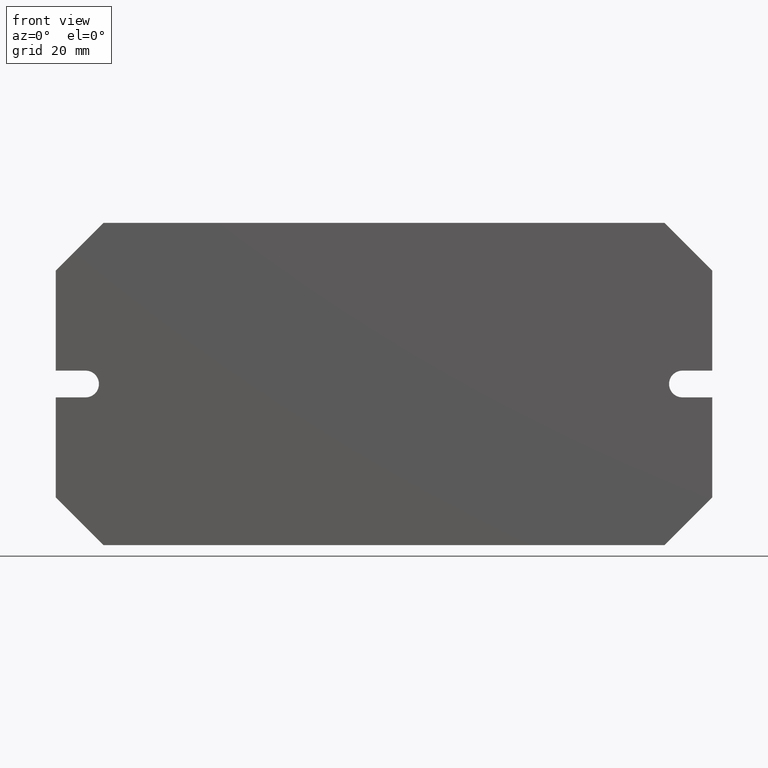
[diagram: clean part render]
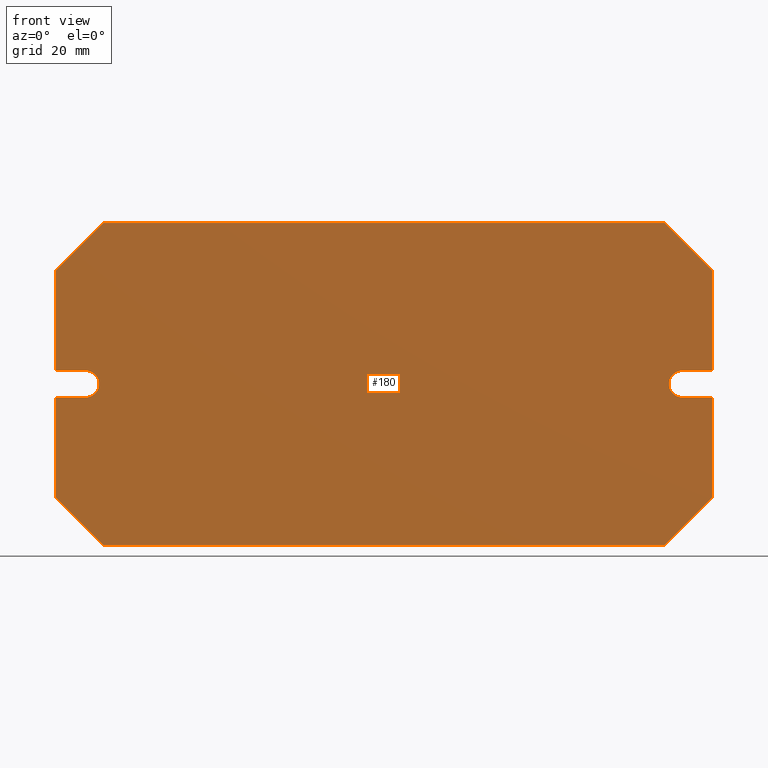
[diagram: same view with one face highlighted and labeled with its STEP entity id]
A machine part, front view. The second image highlights one B-rep face of the part: STEP entity #180.
In plain terms, the highlighted planar face has unit normal (0, 1, 0).
Its self-contained STEP definition (entity closure, byte-faithful):
#1 = ORIENTED_EDGE ( 'NONE', *, *, #195, .F. ) ;
#2 = ORIENTED_EDGE ( 'NONE', *, *, #152, .F. ) ;
#3 = ORIENTED_EDGE ( 'NONE', *, *, #67, .F. ) ;
#5 = ORIENTED_EDGE ( 'NONE', *, *, #85, .F. ) ;
#6 = ORIENTED_EDGE ( 'NONE', *, *, #96, .F. ) ;
#7 = ORIENTED_EDGE ( 'NONE', *, *, #23, .F. ) ;
#8 = ORIENTED_EDGE ( 'NONE', *, *, #30, .F. ) ;
#9 = ORIENTED_EDGE ( 'NONE', *, *, #47, .F. ) ;
#10 = ORIENTED_EDGE ( 'NONE', *, *, #50, .F. ) ;
#11 = EDGE_LOOP ( 'NONE', ( #10, #12, #1, #2, #165, #166, #167, #168, #169, #14, #5, #6, #7, #8, #9, #3 ) ) ;
#12 = ORIENTED_EDGE ( 'NONE', *, *, #181, .F. ) ;
#14 = ORIENTED_EDGE ( 'NONE', *, *, #93, .F. ) ;
#23 = EDGE_CURVE ( 'NONE', #29, #28, #334, .T. ) ;
#28 = VERTEX_POINT ( 'NONE', #325 ) ;
#29 = VERTEX_POINT ( 'NONE', #324 ) ;
#30 = EDGE_CURVE ( 'NONE', #39, #29, #323, .T. ) ;
#39 = VERTEX_POINT ( 'NONE', #368 ) ;
#47 = EDGE_CURVE ( 'NONE', #62, #39, #358, .T. ) ;
#50 = EDGE_CURVE ( 'NONE', #51, #52, #277, .T. ) ;
#51 = VERTEX_POINT ( 'NONE', #250 ) ;
#52 = VERTEX_POINT ( 'NONE', #276 ) ;
#62 = VERTEX_POINT ( 'NONE', #299 ) ;
#67 = EDGE_CURVE ( 'NONE', #52, #62, #289, .T. ) ;
#79 = EDGE_CURVE ( 'NONE', #112, #80, #502, .T. ) ;
#80 = VERTEX_POINT ( 'NONE', #494 ) ;
#85 = EDGE_CURVE ( 'NONE', #95, #86, #503, .T. ) ;
#86 = VERTEX_POINT ( 'NONE', #534 ) ;
#93 = EDGE_CURVE ( 'NONE', #86, #94, #516, .T. ) ;
#94 = VERTEX_POINT ( 'NONE', #510 ) ;
#95 = VERTEX_POINT ( 'NONE', #509 ) ;
#96 = EDGE_CURVE ( 'NONE', #28, #95, #535, .T. ) ;
#112 = VERTEX_POINT ( 'NONE', #546 ) ;
#119 = EDGE_CURVE ( 'NONE', #94, #112, #590, .T. ) ;
#122 = EDGE_CURVE ( 'NONE', #80, #143, #586, .T. ) ;
#143 = VERTEX_POINT ( 'NONE', #215 ) ;
#152 = EDGE_CURVE ( 'NONE', #219, #156, #239, .T. ) ;
#156 = VERTEX_POINT ( 'NONE', #237 ) ;
#165 = ORIENTED_EDGE ( 'NONE', *, *, #224, .F. ) ;
#166 = ORIENTED_EDGE ( 'NONE', *, *, #208, .F. ) ;
#167 = ORIENTED_EDGE ( 'NONE', *, *, #122, .F. ) ;
#168 = ORIENTED_EDGE ( 'NONE', *, *, #79, .F. ) ;
#169 = ORIENTED_EDGE ( 'NONE', *, *, #119, .F. ) ;
#180 = ADVANCED_FACE ( 'NONE', ( #405 ), #411, .F. ) ;
#181 = EDGE_CURVE ( 'NONE', #202, #51, #402, .T. ) ;
#195 = EDGE_CURVE ( 'NONE', #156, #202, #392, .T. ) ;
#202 = VERTEX_POINT ( 'NONE', #448 ) ;
#208 = EDGE_CURVE ( 'NONE', #143, #221, #426, .T. ) ;
#215 = CARTESIAN_POINT ( 'NONE',  ( -46.99999999999997900, 0.0000000000000000000, -26.99999999999997900 ) ) ;
#219 = VERTEX_POINT ( 'NONE', #422 ) ;
#221 = VERTEX_POINT ( 'NONE', #421 ) ;
#224 = EDGE_CURVE ( 'NONE', #221, #219, #470, .T. ) ;
#237 = CARTESIAN_POINT ( 'NONE',  ( -49.99999999999999300, 0.0000000000000000000, -2.249999999999975600 ) ) ;
#239 = LINE ( 'NONE', #244, #243 ) ;
#242 = DIRECTION ( 'NONE',  ( 1.000000000000000000, 0.0000000000000000000, 0.0000000000000000000 ) ) ;
#243 = VECTOR ( 'NONE', #242, 1000.000000000000000 ) ;
#244 = CARTESIAN_POINT ( 'NONE',  ( -55.00000000000000000, 0.0000000000000000000, -2.249999999999981300 ) ) ;
#250 = CARTESIAN_POINT ( 'NONE',  ( -55.00000000000000000, 0.0000000000000000000, 2.249999999999981300 ) ) ;
#262 = CARTESIAN_POINT ( 'NONE',  ( -55.00000000000000000, 0.0000000000000000000, 2.249999999999981300 ) ) ;
#265 = VECTOR ( 'NONE', #279, 1000.000000000000000 ) ;
#276 = CARTESIAN_POINT ( 'NONE',  ( -55.00000000000000000, 0.0000000000000000000, 18.99999999999998200 ) ) ;
#277 = LINE ( 'NONE', #262, #265 ) ;
#279 = DIRECTION ( 'NONE',  ( 0.0000000000000000000, 0.0000000000000000000, 1.000000000000000000 ) ) ;
#287 = VECTOR ( 'NONE', #296, 999.9999999999998900 ) ;
#288 = CARTESIAN_POINT ( 'NONE',  ( -55.00000000000000000, 0.0000000000000000000, 18.99999999999998200 ) ) ;
#289 = LINE ( 'NONE', #288, #287 ) ;
#296 = DIRECTION ( 'NONE',  ( 0.7071067811865486800, 0.0000000000000000000, 0.7071067811865464600 ) ) ;
#299 = CARTESIAN_POINT ( 'NONE',  ( -46.99999999999997900, 0.0000000000000000000, 26.99999999999997900 ) ) ;
#300 = CARTESIAN_POINT ( 'NONE',  ( 49.99999999999997900, 0.0000000000000000000, 5.422833677330016600E-015 ) ) ;
#304 = DIRECTION ( 'NONE',  ( -0.0000000000000000000, -1.000000000000000000, -0.0000000000000000000 ) ) ;
#308 = DIRECTION ( 'NONE',  ( 0.0000000000000000000, 0.0000000000000000000, 1.000000000000000000 ) ) ;
#310 = AXIS2_PLACEMENT_3D ( 'NONE', #300, #304, #308 ) ;
#322 = CARTESIAN_POINT ( 'NONE',  ( 55.00000000000000000, 0.0000000000000000000, 18.99999999999999600 ) ) ;
#323 = LINE ( 'NONE', #322, #386 ) ;
#324 = CARTESIAN_POINT ( 'NONE',  ( 55.00000000000000000, 0.0000000000000000000, 18.99999999999999600 ) ) ;
#325 = CARTESIAN_POINT ( 'NONE',  ( 55.00000000000001400, 0.0000000000000000000, 2.249999999999967600 ) ) ;
#331 = DIRECTION ( 'NONE',  ( 8.285246452426526800E-016, -0.0000000000000000000, -1.000000000000000000 ) ) ;
#332 = VECTOR ( 'NONE', #331, 1000.000000000000000 ) ;
#333 = CARTESIAN_POINT ( 'NONE',  ( 55.00000000000001400, 0.0000000000000000000, 2.249999999999967600 ) ) ;
#334 = LINE ( 'NONE', #333, #332 ) ;
#355 = DIRECTION ( 'NONE',  ( 1.000000000000000000, 0.0000000000000000000, 1.107270303814983800E-016 ) ) ;
#356 = VECTOR ( 'NONE', #355, 1000.000000000000000 ) ;
#357 = CARTESIAN_POINT ( 'NONE',  ( -46.99999999999997900, 0.0000000000000000000, 26.99999999999997900 ) ) ;
#358 = LINE ( 'NONE', #357, #356 ) ;
#368 = CARTESIAN_POINT ( 'NONE',  ( 46.99999999999997900, 0.0000000000000000000, 26.99999999999998900 ) ) ;
#385 = DIRECTION ( 'NONE',  ( 0.7071067811865487900, -0.0000000000000000000, -0.7071067811865463500 ) ) ;
#386 = VECTOR ( 'NONE', #385, 1000.000000000000000 ) ;
#388 = DIRECTION ( 'NONE',  ( 0.0000000000000000000, 0.0000000000000000000, -1.000000000000000000 ) ) ;
#389 = DIRECTION ( 'NONE',  ( 0.0000000000000000000, -1.000000000000000000, 0.0000000000000000000 ) ) ;
#390 = CARTESIAN_POINT ( 'NONE',  ( -49.99999999999999300, 0.0000000000000000000, 1.766889721555378600E-014 ) ) ;
#391 = AXIS2_PLACEMENT_3D ( 'NONE', #390, #389, #388 ) ;
#392 = CIRCLE ( 'NONE', #391, 2.249999999999976000 ) ;
#397 = DIRECTION ( 'NONE',  ( -1.000000000000000000, -0.0000000000000000000, -0.0000000000000000000 ) ) ;
#398 = VECTOR ( 'NONE', #397, 1000.000000000000000 ) ;
#399 = CARTESIAN_POINT ( 'NONE',  ( -55.00000000000000000, 0.0000000000000000000, 2.249999999999981300 ) ) ;
#400 = DIRECTION ( 'NONE',  ( 0.0000000000000000000, -0.0000000000000000000, 1.000000000000000000 ) ) ;
#401 = DIRECTION ( 'NONE',  ( 0.0000000000000000000, 1.000000000000000000, 0.0000000000000000000 ) ) ;
#402 = LINE ( 'NONE', #399, #398 ) ;
#403 = CARTESIAN_POINT ( 'NONE',  ( 49.99999999999997900, 0.0000000000000000000, 5.422833677330016600E-015 ) ) ;
#404 = AXIS2_PLACEMENT_3D ( 'NONE', #403, #401, #400 ) ;
#405 = FACE_OUTER_BOUND ( 'NONE', #11, .T. ) ;
#411 = PLANE ( 'NONE',  #404 ) ;
#421 = CARTESIAN_POINT ( 'NONE',  ( -55.00000000000000000, 0.0000000000000000000, -18.99999999999998200 ) ) ;
#422 = CARTESIAN_POINT ( 'NONE',  ( -55.00000000000000000, 0.0000000000000000000, -2.249999999999981300 ) ) ;
#423 = DIRECTION ( 'NONE',  ( -0.7071067811865486800, -0.0000000000000000000, 0.7071067811865464600 ) ) ;
#424 = VECTOR ( 'NONE', #423, 999.9999999999998900 ) ;
#425 = CARTESIAN_POINT ( 'NONE',  ( -55.00000000000000000, 0.0000000000000000000, -18.99999999999998200 ) ) ;
#426 = LINE ( 'NONE', #425, #424 ) ;
#448 = CARTESIAN_POINT ( 'NONE',  ( -49.99999999999999300, 0.0000000000000000000, 2.249999999999981300 ) ) ;
#467 = DIRECTION ( 'NONE',  ( -0.0000000000000000000, -0.0000000000000000000, 1.000000000000000000 ) ) ;
#468 = VECTOR ( 'NONE', #467, 1000.000000000000000 ) ;
#469 = CARTESIAN_POINT ( 'NONE',  ( -55.00000000000000000, 0.0000000000000000000, -2.249999999999981300 ) ) ;
#470 = LINE ( 'NONE', #469, #468 ) ;
#494 = CARTESIAN_POINT ( 'NONE',  ( 46.99999999999997900, 0.0000000000000000000, -26.99999999999998900 ) ) ;
#495 = DIRECTION ( 'NONE',  ( -0.7071067811865487900, 0.0000000000000000000, -0.7071067811865463500 ) ) ;
#496 = VECTOR ( 'NONE', #495, 1000.000000000000000 ) ;
#501 = CARTESIAN_POINT ( 'NONE',  ( 55.00000000000000000, 0.0000000000000000000, -18.99999999999999600 ) ) ;
#502 = LINE ( 'NONE', #501, #496 ) ;
#503 = CIRCLE ( 'NONE', #310, 2.249999999999974200 ) ;
#509 = CARTESIAN_POINT ( 'NONE',  ( 50.00000000000000700, 0.0000000000000000000, 2.249999999999974700 ) ) ;
#510 = CARTESIAN_POINT ( 'NONE',  ( 55.00000000000001400, 0.0000000000000000000, -2.249999999999967600 ) ) ;
#511 = DIRECTION ( 'NONE',  ( 1.000000000000000000, -0.0000000000000000000, 2.602085213965208700E-016 ) ) ;
#512 = VECTOR ( 'NONE', #511, 1000.000000000000000 ) ;
#515 = CARTESIAN_POINT ( 'NONE',  ( 55.00000000000001400, 0.0000000000000000000, -2.249999999999967600 ) ) ;
#516 = LINE ( 'NONE', #515, #512 ) ;
#529 = DIRECTION ( 'NONE',  ( -1.000000000000000000, 0.0000000000000000000, 2.602085213965208700E-016 ) ) ;
#530 = VECTOR ( 'NONE', #529, 1000.000000000000000 ) ;
#531 = CARTESIAN_POINT ( 'NONE',  ( 55.00000000000001400, 0.0000000000000000000, 2.249999999999967600 ) ) ;
#534 = CARTESIAN_POINT ( 'NONE',  ( 50.00000000000000700, 0.0000000000000000000, -2.249999999999968900 ) ) ;
#535 = LINE ( 'NONE', #531, #530 ) ;
#546 = CARTESIAN_POINT ( 'NONE',  ( 55.00000000000000000, 0.0000000000000000000, -18.99999999999999600 ) ) ;
#583 = DIRECTION ( 'NONE',  ( -1.000000000000000000, -0.0000000000000000000, 1.107270303814983800E-016 ) ) ;
#584 = VECTOR ( 'NONE', #583, 1000.000000000000000 ) ;
#585 = CARTESIAN_POINT ( 'NONE',  ( -46.99999999999997900, 0.0000000000000000000, -26.99999999999997900 ) ) ;
#586 = LINE ( 'NONE', #585, #584 ) ;
#587 = DIRECTION ( 'NONE',  ( -8.285246452426526800E-016, 0.0000000000000000000, -1.000000000000000000 ) ) ;
#588 = VECTOR ( 'NONE', #587, 1000.000000000000000 ) ;
#589 = CARTESIAN_POINT ( 'NONE',  ( 55.00000000000001400, 0.0000000000000000000, -2.249999999999967600 ) ) ;
#590 = LINE ( 'NONE', #589, #588 ) ;